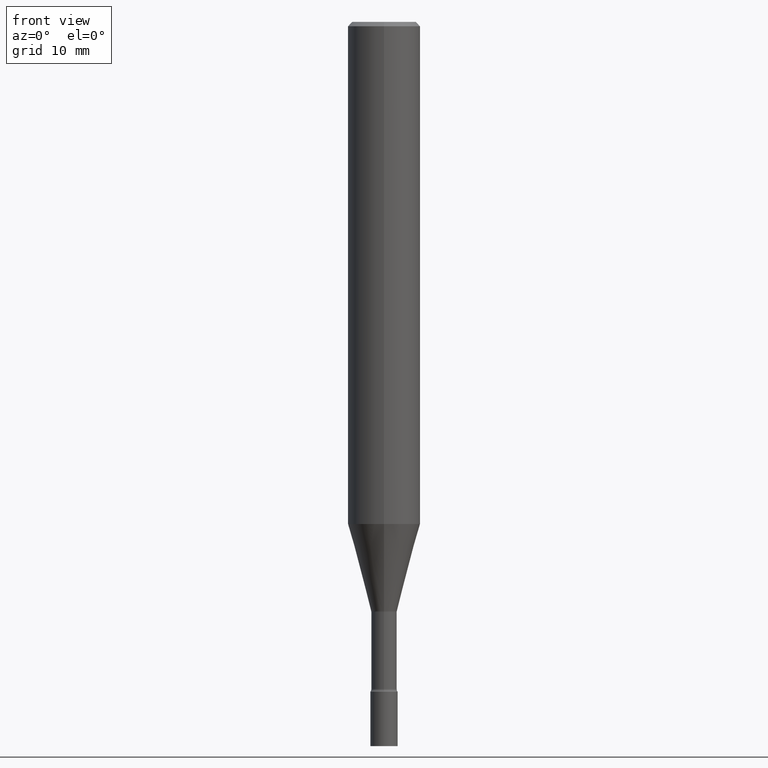
[diagram: clean part render]
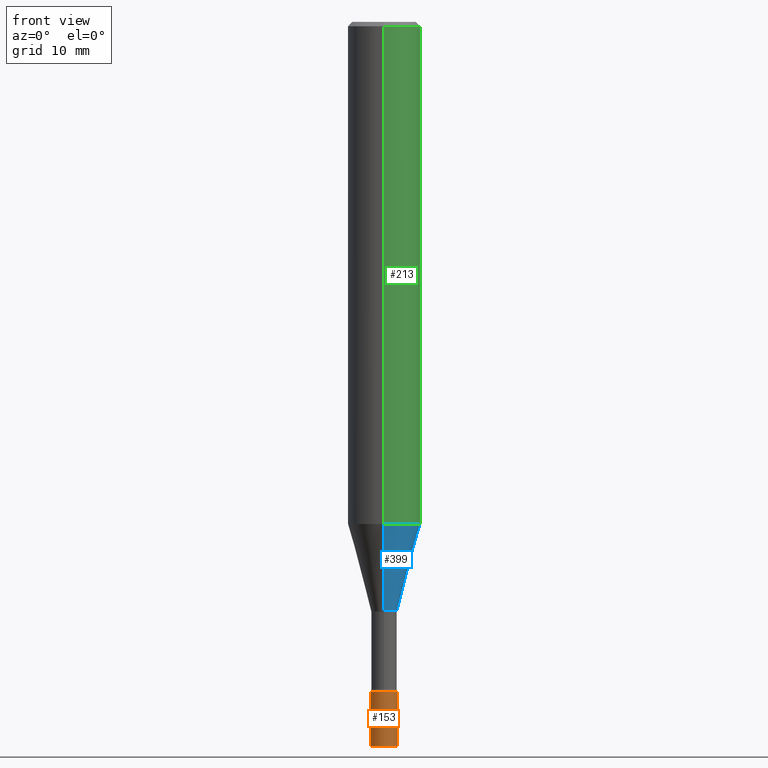
[diagram: same view with three faces highlighted in distinct colors, each labeled with its STEP entity id]
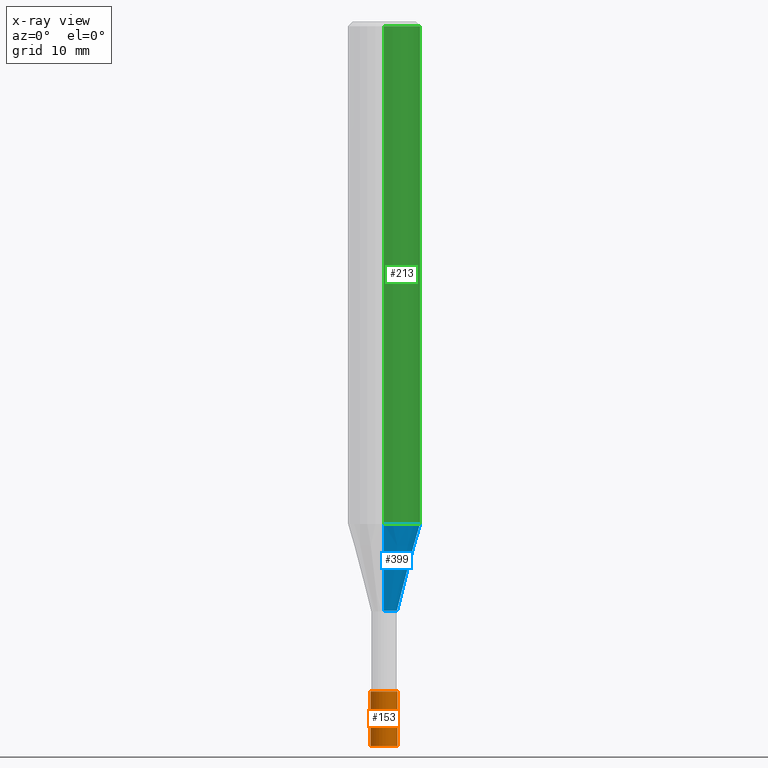
[diagram: x-ray of the same camera — body ghosted, the three highlighted faces saturated]
A machine part, front view with three faces highlighted in distinct colors.
The next image is the same camera in x-ray (body ghosted, the three faces saturated) — at least one of them is partly hidden behind the body in this view.
Their STEP definitions:

[orange] entity #153 — the highlighted cylindrical surface (edge-blend (fillet) strip) has radius 1.1913 mm, axis along (-0, 0, 1).
#1 = DIRECTION ( 'NONE',  ( -2.445468806185136877E-29, 3.491481338843145188E-15, 1.000000000000000000 ) ) ;
#2 = ORIENTED_EDGE ( 'NONE', *, *, #275, .F. ) ;
#3 = DIRECTION ( 'NONE',  ( 1.000000000000000000, -6.982962677686277755E-15, 0.000000000000000000 ) ) ;
#9 = ORIENTED_EDGE ( 'NONE', *, *, #277, .T. ) ;
#19 = VERTEX_POINT ( 'NONE', #114 ) ;
#34 = AXIS2_PLACEMENT_3D ( 'NONE', #490, #492, #3 ) ;
#37 = CARTESIAN_POINT ( 'NONE',  ( 0.000000000000000000, 0.000000000000000000, 0.000000000000000000 ) ) ;
#41 = ORIENTED_EDGE ( 'NONE', *, *, #58, .T. ) ;
#42 = LINE ( 'NONE', #194, #384 ) ;
#48 = DIRECTION ( 'NONE',  ( 1.000000000000000000, -6.982962677686277755E-15, 0.000000000000000000 ) ) ;
#58 = EDGE_CURVE ( 'NONE', #297, #227, #42, .T. ) ;
#62 = CARTESIAN_POINT ( 'NONE',  ( -0.04689999999999999725, -8.067259558185121499E-15, -2.500000000000000000 ) ) ;
#104 = CIRCLE ( 'NONE', #34, 0.04689999999999999725 ) ;
#114 = CARTESIAN_POINT ( 'NONE',  ( -0.04689999999999999725, -8.067259558185121499E-15, -2.312000000000000277 ) ) ;
#116 = FACE_OUTER_BOUND ( 'NONE', #322, .T. ) ;
#153 = ADVANCED_FACE ( 'NONE', ( #116 ), #401, .T. ) ;
#167 = CARTESIAN_POINT ( 'NONE',  ( 0.04689999999999999725, -8.399805804988839471E-15, -2.312000000000000277 ) ) ;
#194 = CARTESIAN_POINT ( 'NONE',  ( 0.04689999999999999725, -3.275009495834859024E-16, 2.286926907848294038E-30 ) ) ;
#198 = LINE ( 'NONE', #367, #501 ) ;
#227 = VERTEX_POINT ( 'NONE', #167 ) ;
#230 = AXIS2_PLACEMENT_3D ( 'NONE', #37, #515, #323 ) ;
#270 = CIRCLE ( 'NONE', #293, 0.04689999999999999725 ) ;
#275 = EDGE_CURVE ( 'NONE', #19, #227, #104, .T. ) ;
#277 = EDGE_CURVE ( 'NONE', #359, #297, #270, .T. ) ;
#293 = AXIS2_PLACEMENT_3D ( 'NONE', #408, #450, #48 ) ;
#297 = VERTEX_POINT ( 'NONE', #458 ) ;
#322 = EDGE_LOOP ( 'NONE', ( #425, #9, #41, #2 ) ) ;
#323 = DIRECTION ( 'NONE',  ( 1.000000000000000000, -6.982962677686266711E-15, 4.876176775795936353E-29 ) ) ;
#337 = EDGE_CURVE ( 'NONE', #359, #19, #198, .T. ) ;
#359 = VERTEX_POINT ( 'NONE', #62 ) ;
#365 = DIRECTION ( 'NONE',  ( -2.445468806185136877E-29, 3.491481338843145188E-15, 1.000000000000000000 ) ) ;
#367 = CARTESIAN_POINT ( 'NONE',  ( -0.04689999999999999725, 3.332445430714869676E-16, -2.306980557329550952E-30 ) ) ;
#384 = VECTOR ( 'NONE', #365, 39.37007874015748143 ) ;
#401 = CYLINDRICAL_SURFACE ( 'NONE', #230, 0.04689999999999999725 ) ;
#408 = CARTESIAN_POINT ( 'NONE',  ( 6.113672015462842613E-29, -8.728703347107864943E-15, -2.500000000000000000 ) ) ;
#425 = ORIENTED_EDGE ( 'NONE', *, *, #337, .F. ) ;
#450 = DIRECTION ( 'NONE',  ( -2.445468806185136597E-29, 3.491481338843145583E-15, 1.000000000000000000 ) ) ;
#458 = CARTESIAN_POINT ( 'NONE',  ( 0.04689999999999999725, -9.056204296691351634E-15, -2.500000000000000000 ) ) ;
#490 = CARTESIAN_POINT ( 'NONE',  ( 5.653923879900035579E-29, -8.072304855405352780E-15, -2.312000000000000277 ) ) ;
#492 = DIRECTION ( 'NONE',  ( -2.445468806185136597E-29, 3.491481338843145583E-15, 1.000000000000000000 ) ) ;
#501 = VECTOR ( 'NONE', #1, 39.37007874015748143 ) ;
#515 = DIRECTION ( 'NONE',  ( -2.445468806185136597E-29, 3.491481338843145583E-15, 1.000000000000000000 ) ) ;

[blue] entity #399 — the highlighted conical surface has half-angle 15 deg.
#5 = ORIENTED_EDGE ( 'NONE', *, *, #123, .F. ) ;
#13 = EDGE_LOOP ( 'NONE', ( #29, #88, #135, #5 ) ) ;
#28 = DIRECTION ( 'NONE',  ( -6.982962677686264344E-15, -1.000000000000000000, 6.123693927591976054E-15 ) ) ;
#29 = ORIENTED_EDGE ( 'NONE', *, *, #170, .T. ) ;
#67 = VERTEX_POINT ( 'NONE', #520 ) ;
#71 = CARTESIAN_POINT ( 'NONE',  ( 4.972165051557140757E-29, -7.098073827060517984E-15, -2.033092501787272965 ) ) ;
#79 = AXIS2_PLACEMENT_3D ( 'NONE', #290, #455, #452 ) ;
#88 = ORIENTED_EDGE ( 'NONE', *, *, #147, .T. ) ;
#112 = AXIS2_PLACEMENT_3D ( 'NONE', #71, #304, #28 ) ;
#115 = EDGE_CURVE ( 'NONE', #263, #461, #355, .T. ) ;
#123 = EDGE_CURVE ( 'NONE', #482, #263, #163, .T. ) ;
#126 = AXIS2_PLACEMENT_3D ( 'NONE', #268, #278, #517 ) ;
#135 = ORIENTED_EDGE ( 'NONE', *, *, #115, .F. ) ;
#142 = FACE_OUTER_BOUND ( 'NONE', #13, .T. ) ;
#144 = CONICAL_SURFACE ( 'NONE', #112, 0.04461111260566397174, 0.2617993877991502405 ) ;
#147 = EDGE_CURVE ( 'NONE', #67, #461, #193, .T. ) ;
#163 = LINE ( 'NONE', #325, #204 ) ;
#170 = EDGE_CURVE ( 'NONE', #482, #67, #373, .T. ) ;
#193 = LINE ( 'NONE', #361, #256 ) ;
#204 = VECTOR ( 'NONE', #281, 39.37007874015748143 ) ;
#235 = DIRECTION ( 'NONE',  ( 1.839019923739599921E-15, 0.2588190451025249028, 0.9659258262890670910 ) ) ;
#256 = VECTOR ( 'NONE', #235, 39.37007874015748143 ) ;
#263 = VERTEX_POINT ( 'NONE', #328 ) ;
#268 = CARTESIAN_POINT ( 'NONE',  ( 4.238442338125165839E-29, -6.050639171426887853E-15, -1.733077089667678816 ) ) ;
#278 = DIRECTION ( 'NONE',  ( -2.445616737647772983E-29, 3.491269492568914221E-15, 1.000000000000000000 ) ) ;
#281 = DIRECTION ( 'NONE',  ( -1.807323732225329745E-15, -0.2588190451025181305, 0.9659258262890689783 ) ) ;
#290 = CARTESIAN_POINT ( 'NONE',  ( 4.972165051557140757E-29, -7.098073827060517984E-15, -2.033092501787272965 ) ) ;
#304 = DIRECTION ( 'NONE',  ( -2.445616737647772983E-29, 3.491269492568914221E-15, 1.000000000000000000 ) ) ;
#325 = CARTESIAN_POINT ( 'NONE',  ( -3.115177343353610166E-16, -0.04461111260567106329, -2.033092501787272965 ) ) ;
#328 = CARTESIAN_POINT ( 'NONE',  ( -8.728703347107405431E-16, -0.1250000000000059952, -1.733077089667678150 ) ) ;
#350 = CARTESIAN_POINT ( 'NONE',  ( 8.881784197001674364E-16, 0.1249999999999939770, -1.733077089667679260 ) ) ;
#355 = CIRCLE ( 'NONE', #126, 0.1250000000000000000 ) ;
#361 = CARTESIAN_POINT ( 'NONE',  ( 3.169810199613533485E-16, 0.04461111260565687325, -2.033092501787273410 ) ) ;
#373 = CIRCLE ( 'NONE', #79, 0.04461111260566397174 ) ;
#399 = ADVANCED_FACE ( 'NONE', ( #142 ), #144, .T. ) ;
#446 = CARTESIAN_POINT ( 'NONE',  ( -3.115177343353610166E-16, -0.04461111260567106329, -2.033092501787272965 ) ) ;
#452 = DIRECTION ( 'NONE',  ( -6.982962677686264344E-15, -1.000000000000000000, 6.123693927591976054E-15 ) ) ;
#455 = DIRECTION ( 'NONE',  ( -2.445616737647772983E-29, 3.491269492568914221E-15, 1.000000000000000000 ) ) ;
#461 = VERTEX_POINT ( 'NONE', #350 ) ;
#482 = VERTEX_POINT ( 'NONE', #446 ) ;
#517 = DIRECTION ( 'NONE',  ( -6.982962677686265922E-15, -1.000000000000000000, 4.370956789862821150E-15 ) ) ;
#520 = CARTESIAN_POINT ( 'NONE',  ( 6.025797198307604171E-16, 0.04461111260565687325, -2.033092501787273410 ) ) ;

[green] entity #213 — the highlighted cylindrical surface (edge-blend (fillet) strip) has radius 3.175 mm, axis along (-0, 0, 1).
#33 = DIRECTION ( 'NONE',  ( -2.445616737647772983E-29, 3.491269492568914221E-15, 1.000000000000000000 ) ) ;
#55 = FACE_OUTER_BOUND ( 'NONE', #117, .T. ) ;
#87 = DIRECTION ( 'NONE',  ( -2.445616737647772983E-29, 3.491269492568914221E-15, 1.000000000000000000 ) ) ;
#115 = EDGE_CURVE ( 'NONE', #263, #461, #355, .T. ) ;
#117 = EDGE_LOOP ( 'NONE', ( #206, #284, #246, #423 ) ) ;
#126 = AXIS2_PLACEMENT_3D ( 'NONE', #268, #278, #517 ) ;
#134 = LINE ( 'NONE', #502, #442 ) ;
#179 = DIRECTION ( 'NONE',  ( -2.445616737647772983E-29, 3.491269492568914221E-15, 1.000000000000000000 ) ) ;
#206 = ORIENTED_EDGE ( 'NONE', *, *, #115, .T. ) ;
#208 = DIRECTION ( 'NONE',  ( -6.982962677686265922E-15, -1.000000000000000000, 3.491269492568914221E-15 ) ) ;
#210 = CARTESIAN_POINT ( 'NONE',  ( 0.000000000000000000, 0.000000000000000000, 0.000000000000000000 ) ) ;
#211 = VERTEX_POINT ( 'NONE', #412 ) ;
#213 = ADVANCED_FACE ( 'NONE', ( #55 ), #283, .T. ) ;
#222 = AXIS2_PLACEMENT_3D ( 'NONE', #210, #87, #208 ) ;
#242 = VERTEX_POINT ( 'NONE', #378 ) ;
#246 = ORIENTED_EDGE ( 'NONE', *, *, #467, .F. ) ;
#252 = CARTESIAN_POINT ( 'NONE',  ( 3.668425106471662575E-31, -5.236904238853375768E-17, -0.01500000000000001332 ) ) ;
#263 = VERTEX_POINT ( 'NONE', #328 ) ;
#268 = CARTESIAN_POINT ( 'NONE',  ( 4.238442338125165839E-29, -6.050639171426887853E-15, -1.733077089667678816 ) ) ;
#278 = DIRECTION ( 'NONE',  ( -2.445616737647772983E-29, 3.491269492568914221E-15, 1.000000000000000000 ) ) ;
#283 = CYLINDRICAL_SURFACE ( 'NONE', #222, 0.1250000000000000000 ) ;
#284 = ORIENTED_EDGE ( 'NONE', *, *, #489, .T. ) ;
#319 = CARTESIAN_POINT ( 'NONE',  ( 8.881784197001251337E-16, 0.1250000000000000000, -4.364086865711142776E-16 ) ) ;
#328 = CARTESIAN_POINT ( 'NONE',  ( -8.728703347107405431E-16, -0.1250000000000059952, -1.733077089667678150 ) ) ;
#346 = AXIS2_PLACEMENT_3D ( 'NONE', #252, #179, #424 ) ;
#350 = CARTESIAN_POINT ( 'NONE',  ( 8.881784197001674364E-16, 0.1249999999999939770, -1.733077089667679260 ) ) ;
#355 = CIRCLE ( 'NONE', #126, 0.1250000000000000000 ) ;
#378 = CARTESIAN_POINT ( 'NONE',  ( 8.881784197001678308E-16, 0.1249999999999999584, -0.01500000000000044874 ) ) ;
#400 = LINE ( 'NONE', #319, #409 ) ;
#409 = VECTOR ( 'NONE', #33, 39.37007874015748143 ) ;
#412 = CARTESIAN_POINT ( 'NONE',  ( -8.728703347107828458E-16, -0.1250000000000000555, -0.01499999999999957791 ) ) ;
#423 = ORIENTED_EDGE ( 'NONE', *, *, #464, .F. ) ;
#424 = DIRECTION ( 'NONE',  ( -6.982962677686265922E-15, -1.000000000000000000, 3.483106191921935554E-15 ) ) ;
#442 = VECTOR ( 'NONE', #462, 39.37007874015748143 ) ;
#461 = VERTEX_POINT ( 'NONE', #350 ) ;
#462 = DIRECTION ( 'NONE',  ( -2.445616737647772983E-29, 3.491269492568914221E-15, 1.000000000000000000 ) ) ;
#464 = EDGE_CURVE ( 'NONE', #263, #211, #134, .T. ) ;
#467 = EDGE_CURVE ( 'NONE', #211, #242, #481, .T. ) ;
#481 = CIRCLE ( 'NONE', #346, 0.1250000000000000000 ) ;
#489 = EDGE_CURVE ( 'NONE', #461, #242, #400, .T. ) ;
#502 = CARTESIAN_POINT ( 'NONE',  ( -8.728703347107832402E-16, -0.1250000000000000000, 4.364086865711142776E-16 ) ) ;
#517 = DIRECTION ( 'NONE',  ( -6.982962677686265922E-15, -1.000000000000000000, 4.370956789862821150E-15 ) ) ;